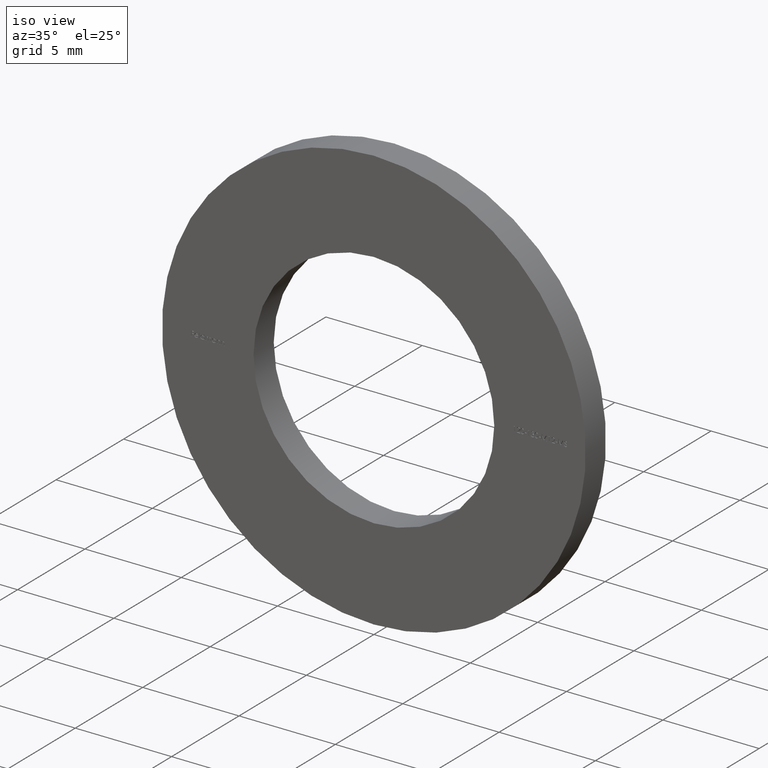
[diagram: clean part render]
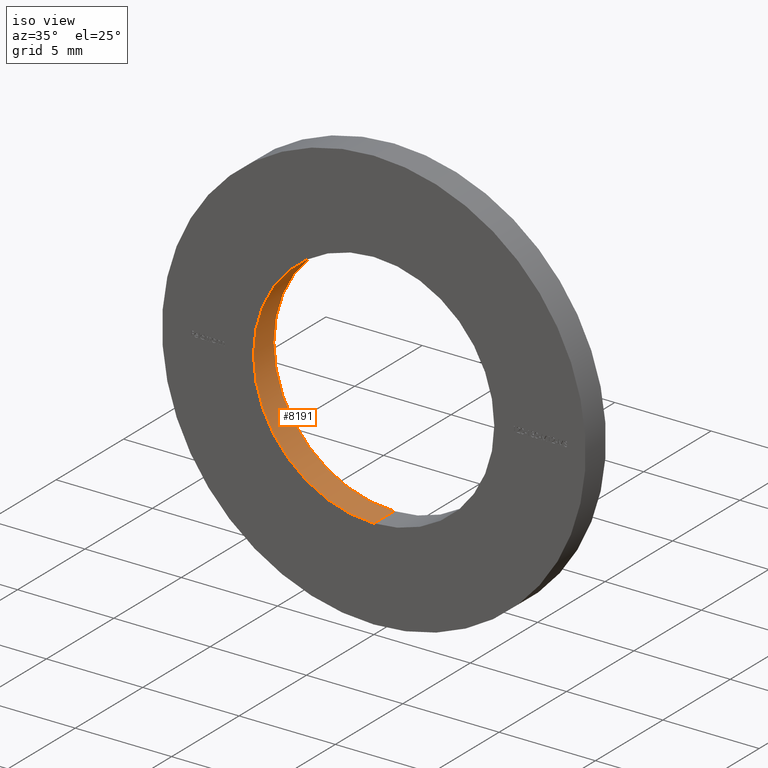
[diagram: same view with one face highlighted and labeled with its STEP entity id]
A machine part, iso view. The second image highlights one B-rep face of the part: STEP entity #8191.
In plain terms, the highlighted cylindrical surface (partial cylindrical patch) has radius 6.25 mm, axis along (-0, -1, -0).
Its self-contained STEP definition (entity closure, byte-faithful):
#39 = LINE ( 'NONE', #12546, #377 ) ;
#53 = CIRCLE ( 'NONE', #6875, 6.250000000000000000 ) ;
#377 = VECTOR ( 'NONE', #8286, 1000.000000000000000 ) ;
#1231 = LINE ( 'NONE', #6075, #5467 ) ;
#2244 = CARTESIAN_POINT ( 'NONE',  ( 0.0000000000000000000, 1.500000000000000000, -6.250000000000000000 ) ) ;
#2342 = DIRECTION ( 'NONE',  ( 0.0000000000000000000, 0.0000000000000000000, 1.000000000000000000 ) ) ;
#2840 = ORIENTED_EDGE ( 'NONE', *, *, #7639, .T. ) ;
#2851 = ORIENTED_EDGE ( 'NONE', *, *, #9586, .T. ) ;
#3827 = EDGE_LOOP ( 'NONE', ( #2851, #2840, #13413, #5358 ) ) ;
#3958 = CARTESIAN_POINT ( 'NONE',  ( 0.0000000000000000000, 1.500000000000000000, 0.0000000000000000000 ) ) ;
#5358 = ORIENTED_EDGE ( 'NONE', *, *, #7621, .F. ) ;
#5467 = VECTOR ( 'NONE', #7162, 1000.000000000000000 ) ;
#6075 = CARTESIAN_POINT ( 'NONE',  ( 0.0000000000000000000, 1.500000000000000000, -6.250000000000000000 ) ) ;
#6076 = VERTEX_POINT ( 'NONE', #6895 ) ;
#6540 = CARTESIAN_POINT ( 'NONE',  ( 0.0000000000000000000, 0.0000000000000000000, -6.250000000000000000 ) ) ;
#6875 = AXIS2_PLACEMENT_3D ( 'NONE', #8206, #7897, #2342 ) ;
#6895 = CARTESIAN_POINT ( 'NONE',  ( 7.654042494670957600E-016, 1.500000000000000000, 6.250000000000000000 ) ) ;
#6999 = EDGE_CURVE ( 'NONE', #7877, #13911, #53, .T. ) ;
#7162 = DIRECTION ( 'NONE',  ( -0.0000000000000000000, -1.000000000000000000, -0.0000000000000000000 ) ) ;
#7189 = DIRECTION ( 'NONE',  ( -0.0000000000000000000, -1.000000000000000000, -0.0000000000000000000 ) ) ;
#7621 = EDGE_CURVE ( 'NONE', #7863, #7877, #1231, .T. ) ;
#7639 = EDGE_CURVE ( 'NONE', #6076, #13911, #39, .T. ) ;
#7863 = VERTEX_POINT ( 'NONE', #2244 ) ;
#7877 = VERTEX_POINT ( 'NONE', #6540 ) ;
#7897 = DIRECTION ( 'NONE',  ( 0.0000000000000000000, 1.000000000000000000, 0.0000000000000000000 ) ) ;
#7955 = FACE_OUTER_BOUND ( 'NONE', #3827, .T. ) ;
#8191 = ADVANCED_FACE ( 'NONE', ( #7955 ), #13564, .F. ) ;
#8206 = CARTESIAN_POINT ( 'NONE',  ( 0.0000000000000000000, 0.0000000000000000000, 0.0000000000000000000 ) ) ;
#8286 = DIRECTION ( 'NONE',  ( -0.0000000000000000000, -1.000000000000000000, -0.0000000000000000000 ) ) ;
#8601 = CIRCLE ( 'NONE', #10310, 6.250000000000000000 ) ;
#9455 = CARTESIAN_POINT ( 'NONE',  ( 0.0000000000000000000, 1.500000000000000000, 0.0000000000000000000 ) ) ;
#9586 = EDGE_CURVE ( 'NONE', #7863, #6076, #8601, .T. ) ;
#10074 = CARTESIAN_POINT ( 'NONE',  ( 7.654042494670957600E-016, 0.0000000000000000000, 6.250000000000000000 ) ) ;
#10218 = AXIS2_PLACEMENT_3D ( 'NONE', #3958, #7189, #13623 ) ;
#10310 = AXIS2_PLACEMENT_3D ( 'NONE', #9455, #12881, #10743 ) ;
#10743 = DIRECTION ( 'NONE',  ( 0.0000000000000000000, 0.0000000000000000000, 1.000000000000000000 ) ) ;
#12546 = CARTESIAN_POINT ( 'NONE',  ( 7.654042494670957600E-016, 1.500000000000000000, 6.250000000000000000 ) ) ;
#12881 = DIRECTION ( 'NONE',  ( 0.0000000000000000000, 1.000000000000000000, 0.0000000000000000000 ) ) ;
#13413 = ORIENTED_EDGE ( 'NONE', *, *, #6999, .F. ) ;
#13564 = CYLINDRICAL_SURFACE ( 'NONE', #10218, 6.250000000000000000 ) ;
#13623 = DIRECTION ( 'NONE',  ( 0.0000000000000000000, 0.0000000000000000000, -1.000000000000000000 ) ) ;
#13911 = VERTEX_POINT ( 'NONE', #10074 ) ;